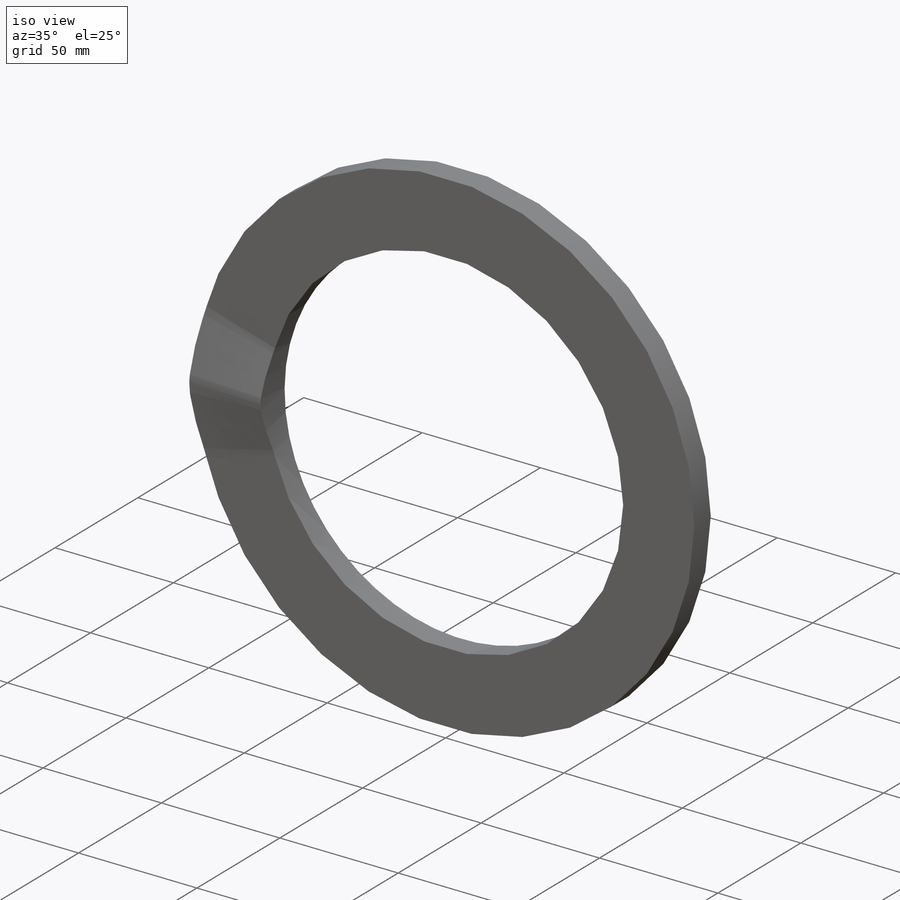
[diagram: iso view]
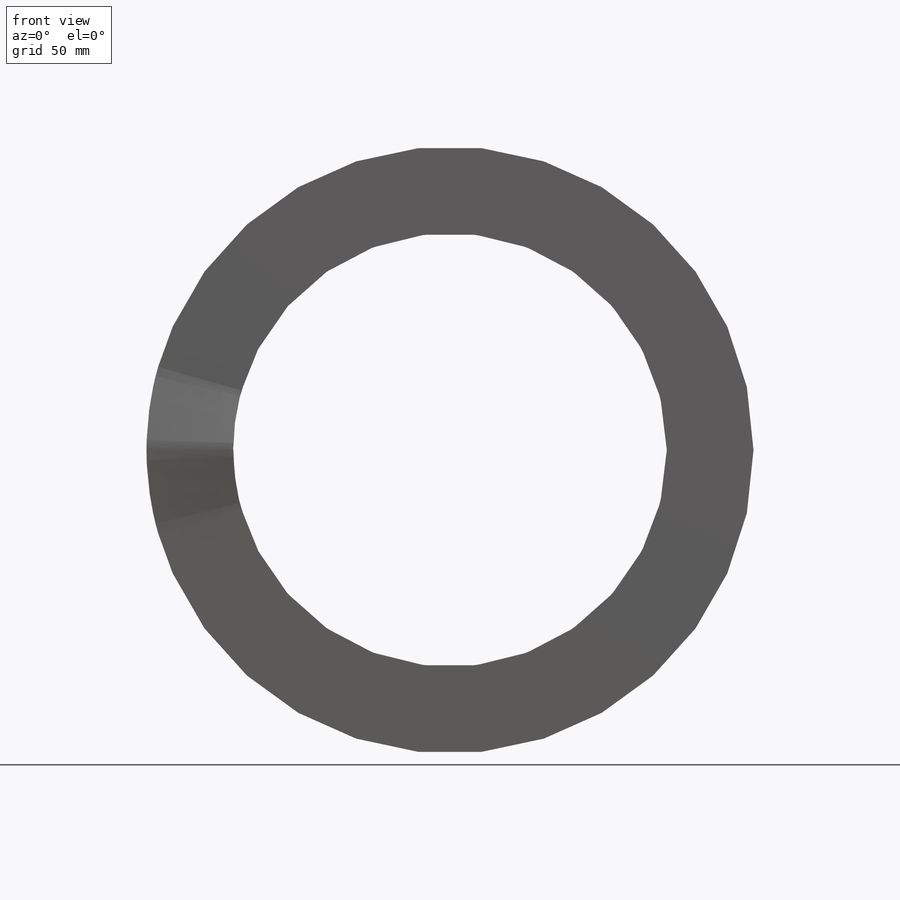
[diagram: front view]
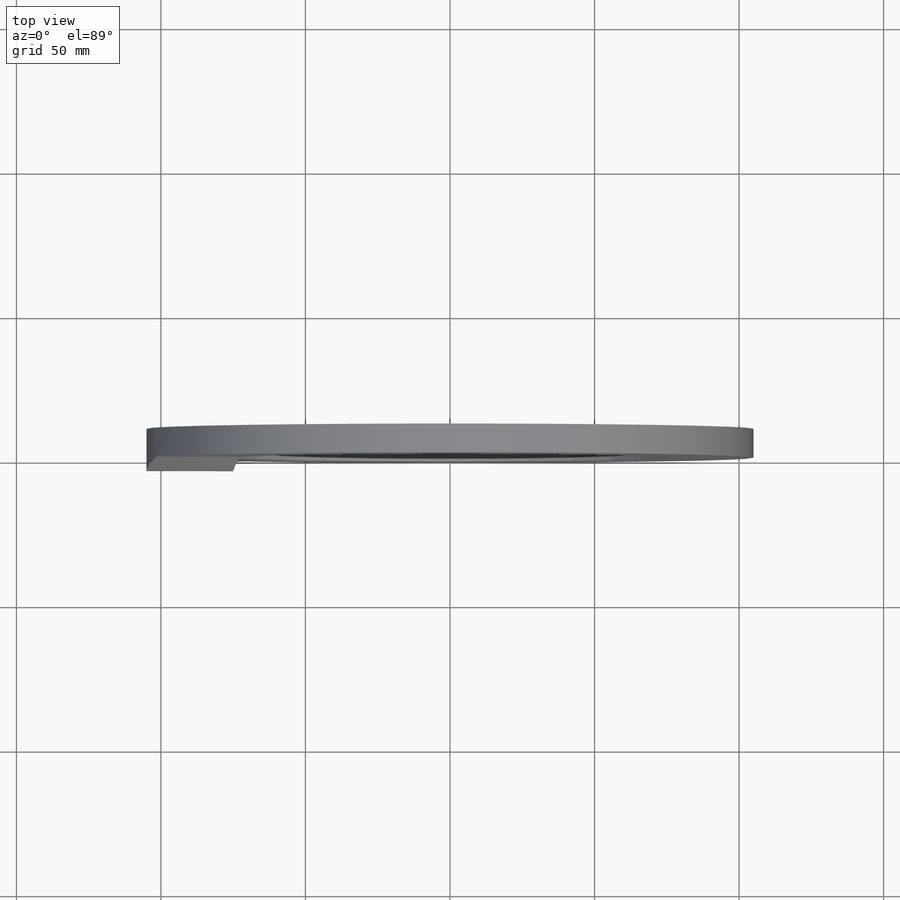
[diagram: top view]
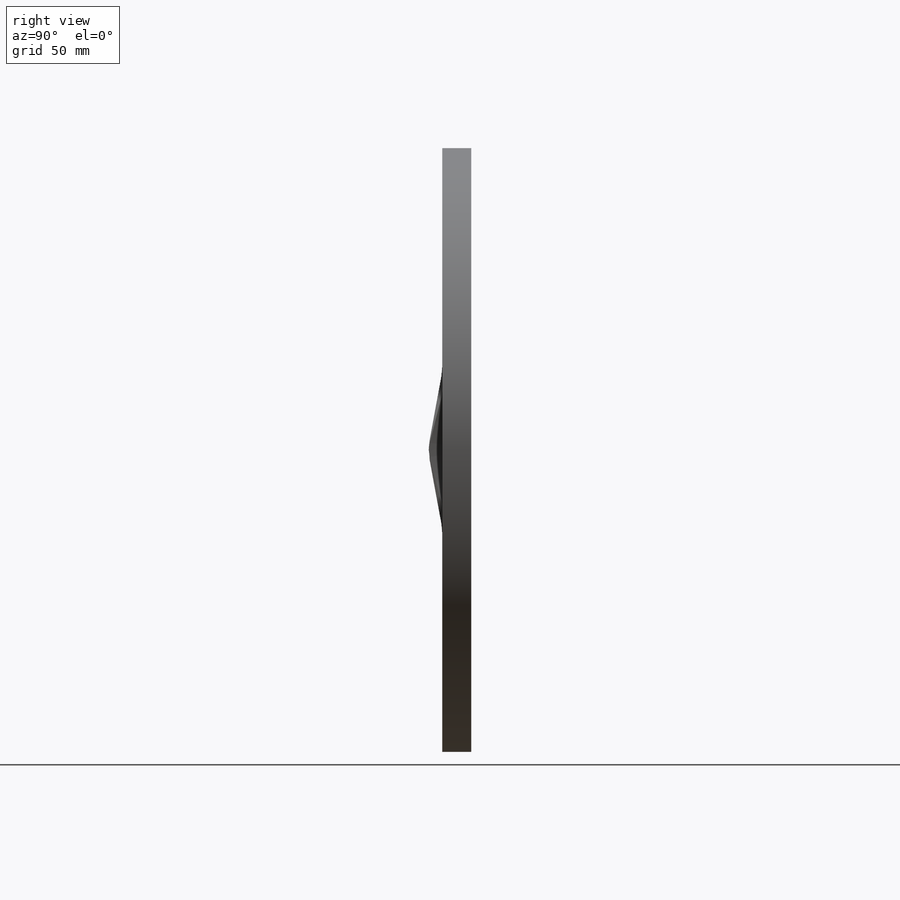
[diagram: right view]
SOLIDWORKS PART (.sldprt)
format: sldprt  version: not decoded by parser v0  size: 225,792 bytes
history: native  units: mm
features: plane x4, sketch x3, extrude x2, material x1 (+8 scaffold rows collapsed)
feature tree (18):
  scaffold x8  (default folders/planes/origin — collapsed)
  material  "Material <nicht festgelegt>"
  plane  "Vorne"
  plane  "Oben"
  plane  "Rechts"
  sketch  "Skizze1"  dims[D1=120.0mm D2=150.0mm]
  extrude  "Aufsatz-Linear austragen1"  Depth=40mm
  plane  "Ebene1"
  sketch  "Skizze3"  dims[D1=0.0mm]
  sketch  "Skizze2"  dims[c1.D5=10.0mm c1.D1=~39.269908mm c1.D2=5.0mm c1.D3=~471.238898mm c1.D4=10.0mm c2.D2=5.0mm c2.D4=10.0mm c2.D1=30.0mm]
  extrude  "Fläche löschen4"  Depth=0mm
decode coverage: 5 of 5 modeling features carry decoded parameters
note: ~ marks probable driven/reference dimensions
note: suppression state not decoded; provenance and decode notes live in map.json
